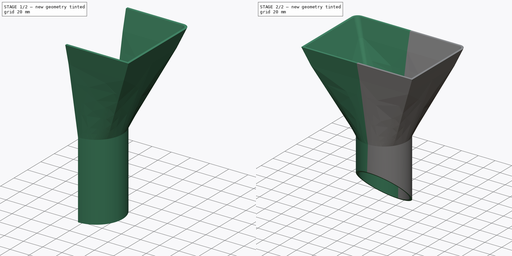
[diagram: build sequence overview — one tinted view per stage of 2, left to right]
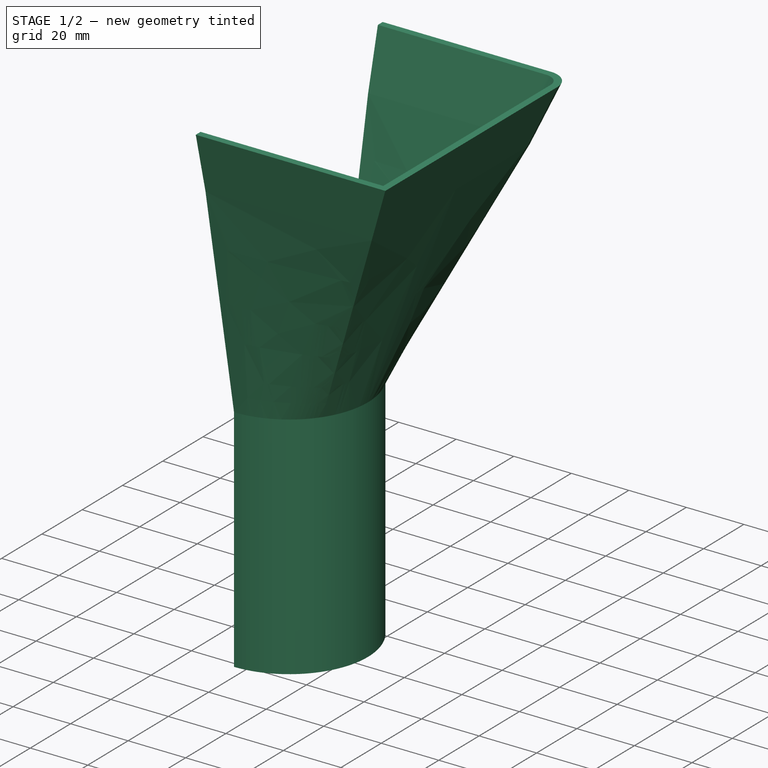
[diagram: stage 1 of 2 — iso view after this stage's code; geometry added in this stage tinted green]
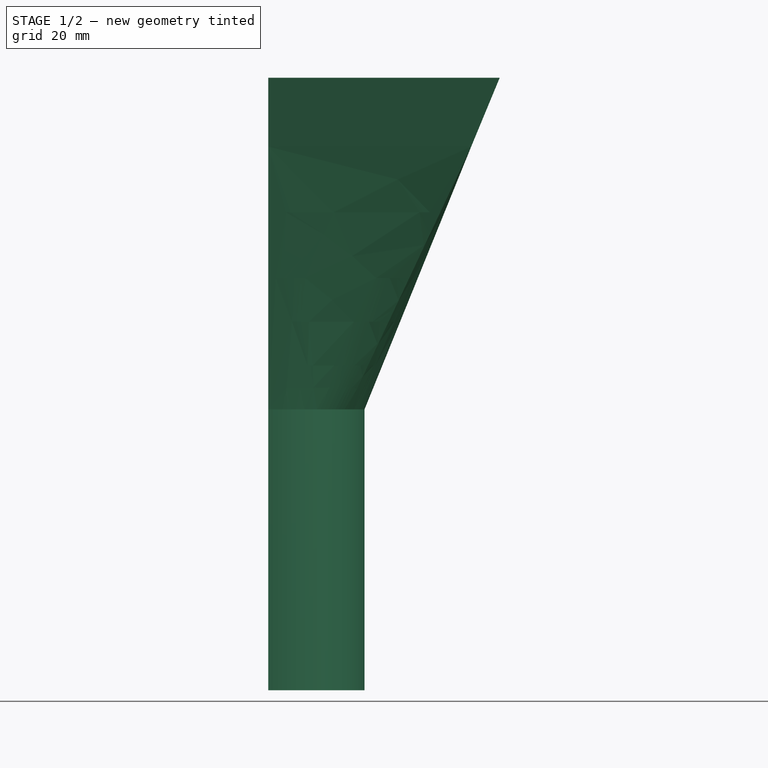
[diagram: stage 1 of 2 — front view after this stage's code; geometry added in this stage tinted green]
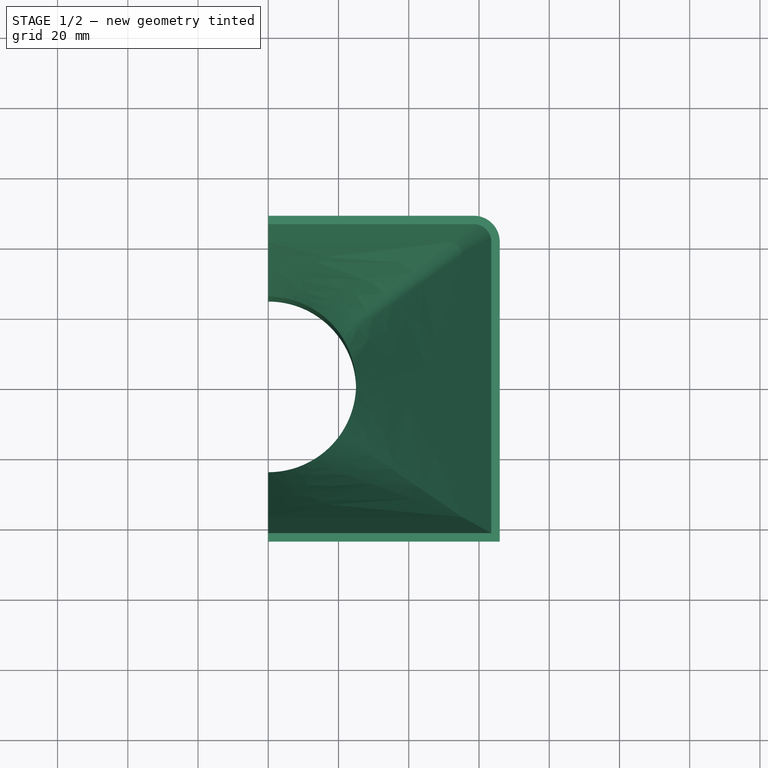
[diagram: stage 1 of 2 — top view after this stage's code; geometry added in this stage tinted green]
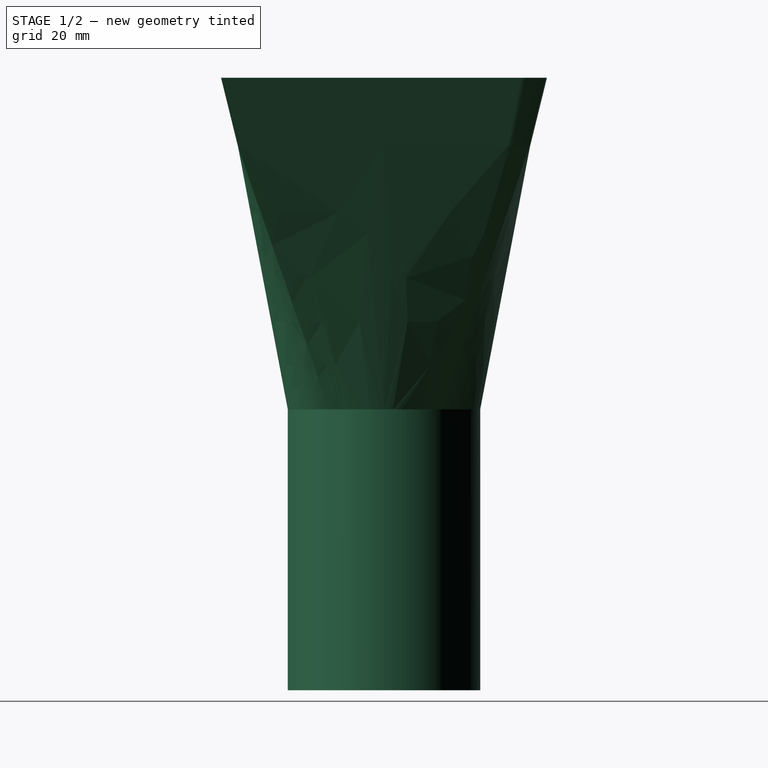
[diagram: stage 1 of 2 — right view after this stage's code; geometry added in this stage tinted green]
FCSTD DOCUMENT  (FreeCAD 0.19R24291 (Git))
Label: Насадка
License: All rights reserved
LicenseURL: http://en.wikipedia.org/wiki/All_rights_reserved
objects: Sketcher::SketchObject×11, PartDesign::Plane×5, PartDesign::Point×4, PartDesign::AdditiveLoft×1, PartDesign::Line×1, PartDesign::Pad×1, PartDesign::Pocket×1, PartDesign::Mirrored×1, PartDesign::Body×1
note: 29 computed .brp shape members not serialized (recipe doc carries the construction recipe); baked Part::Feature solids carry a one-line shape summary decoded from their .brp

FEATURE [Sketcher::SketchObject] Sketch
  FullyConstrained = true
  MapMode = 5
  Support = -> [XY_Plane]
  sketch-geometry (15):
    g0: LineSegment StartX=0 StartY=44 StartZ=0 EndX=58.5 EndY=44 EndZ=0
    g1: LineSegment StartX=63.5 StartY=39 StartZ=0 EndX=63.5 EndY=0 EndZ=0
    g2: LineSegment StartX=0 StartY=44 StartZ=0 EndX=0 EndY=46.4 EndZ=0
    g3: LineSegment StartX=0 StartY=46.4 StartZ=0 EndX=58.5 EndY=46.4 EndZ=0
    g4: LineSegment StartX=65.9 StartY=39 StartZ=0 EndX=65.9 EndY=0 EndZ=0
    g5: LineSegment StartX=65.9 StartY=0 StartZ=0 EndX=63.5 EndY=0 EndZ=0
    g6: ArcOfCircle CenterX=58.5 CenterY=39 CenterZ=0 NormalX=0 NormalY=0 NormalZ=1 AngleXU=0 Radius=5 StartAngle=0 EndAngle=1.5708
    g7: ArcOfCircle CenterX=58.5 CenterY=39 CenterZ=0 NormalX=0 NormalY=0 NormalZ=1 AngleXU=0 Radius=7.4 StartAngle=1e-16 EndAngle=1.5708
    g8: LineSegment StartX=63.5 StartY=0 StartZ=0 EndX=63.5 EndY=-44 EndZ=0
    g9: LineSegment StartX=65.9 StartY=-46.4 StartZ=0 EndX=65.9 EndY=0 EndZ=0
    g10: LineSegment StartX=65.9 StartY=-46.4 StartZ=0 EndX=0 EndY=-46.4 EndZ=0
    g11: LineSegment StartX=0 StartY=-46.4 StartZ=0 EndX=0 EndY=-44 EndZ=0
    g12: LineSegment StartX=0 StartY=-44 StartZ=0 EndX=63.5 EndY=-44 EndZ=0
    g13: LineSegment StartX=0 StartY=0 StartZ=0 EndX=0 EndY=44 EndZ=0
    g14: LineSegment StartX=0 StartY=0 StartZ=0 EndX=0 EndY=-44 EndZ=0
  constraints (40):
    c: PointOnObject(g0,g-2)
    c: Horizontal(g0)
    c: PointOnObject(g1,g-1)
    c: Vertical(g1)
    c: Coincident(g0,g2)
    c: PointOnObject(g2,g-2)
    c: Coincident(g2,g3)
    c: Horizontal(g3)
    c: PointOnObject(g4,g-1)
    c: Vertical(g4)
    c: Coincident(g4,g5)
    c: Coincident(g5,g1)
    c: Equal(g5,g2)
    c: Distance(g5) = 2.4
    c: Tangent(g0,g6) = 1.5708
    c: Tangent(g1,g6) = 1.5708
    c: Tangent(g3,g7) = 1.5708
    c: Tangent(g4,g7) = 1.5708
    c: Distance(g1,g-1) = 63.5
    c: Distance(g0,g-1) = 44
    c: Diameter(g6) = 10
    c: Vertical(g3,g0)
    c: Vertical(g8)
    c: Vertical(g9)
    c: Coincident(g10,g11)
    c: Coincident(g11,g12)
    c: Horizontal(g10)
    c: Horizontal(g12)
    c: Vertical(g11)
    c: Coincident(g10,g9)
    c: PointOnObject(g11,g-2)
    c: Coincident(g12,g8)
    c: Coincident(g8,g1)
    c: Equal(g5,g11)
    c: Coincident(g13,g0)
    c: Coincident(g14,g13)
    c: Coincident(g14,g11)
    c: Equal(g14,g13)
    c: Coincident(g9,g4)
    c: Coincident(g13,g-1)
FEATURE [Sketcher::SketchObject] Sketch001
  AttachmentOffset = pos=(0,0,-94.4267) rot=(0,0,1;0rad)
  FullyConstrained = true
  MapMode = 5
  Placement = pos=(0,0,-94.4267) rot=(0,0,1;0rad)
  Support = -> [XY_Plane]
  expr: .AttachmentOffset.Base.z = -20 - 16.5 / tan(25 / 2)
  sketch-geometry (15):
    g0: ArcOfCircle CenterX=0 CenterY=0 CenterZ=0 NormalX=0 NormalY=0 NormalZ=1 AngleXU=0 Radius=25 StartAngle=0.640784 EndAngle=1.5708
    g1: ArcOfCircle CenterX=0 CenterY=0 CenterZ=0 NormalX=0 NormalY=0 NormalZ=1 AngleXU=0 Radius=25 StartAngle=0 EndAngle=0.56213
    g2: ArcOfCircle CenterX=0 CenterY=0 CenterZ=0 NormalX=0 NormalY=0 NormalZ=1 AngleXU=0 Radius=27.4 StartAngle=0 EndAngle=0.56213
    g3: ArcOfCircle CenterX=0 CenterY=0 CenterZ=0 NormalX=0 NormalY=0 NormalZ=1 AngleXU=0 Radius=27.4 StartAngle=0.640784 EndAngle=1.5708
    g4: LineSegment StartX=0 StartY=0 StartZ=0 EndX=63.5 EndY=40 EndZ=0
    g5: LineSegment StartX=1.5e-15 StartY=25 StartZ=0 EndX=1.7e-15 EndY=27.4 EndZ=0
    g6: ArcOfCircle CenterX=0 CenterY=0 CenterZ=0 NormalX=0 NormalY=0 NormalZ=1 AngleXU=0 Radius=27.4 StartAngle=0.56213 EndAngle=0.640784
    g7: ArcOfCircle CenterX=0 CenterY=0 CenterZ=0 NormalX=0 NormalY=0 NormalZ=1 AngleXU=0 Radius=25 StartAngle=0.56213 EndAngle=0.640784
    g8: LineSegment StartX=0 StartY=0 StartZ=0 EndX=59 EndY=44 EndZ=0
    g9: ArcOfCircle CenterX=0 CenterY=0 CenterZ=0 NormalX=0 NormalY=0 NormalZ=1 AngleXU=0 Radius=25 StartAngle=5.67723 EndAngle=6.28319
    g10: ArcOfCircle CenterX=0 CenterY=0 CenterZ=0 NormalX=0 NormalY=0 NormalZ=1 AngleXU=0 Radius=27.4 StartAngle=5.67723 EndAngle=6.28319
    g11: ArcOfCircle CenterX=0 CenterY=0 CenterZ=0 NormalX=0 NormalY=0 NormalZ=1 AngleXU=0 Radius=25 StartAngle=4.71239 EndAngle=5.67723
    g12: ArcOfCircle CenterX=0 CenterY=0 CenterZ=0 NormalX=0 NormalY=0 NormalZ=1 AngleXU=0 Radius=27.4 StartAngle=4.71239 EndAngle=5.67723
    g13: LineSegment StartX=0 StartY=0 StartZ=0 EndX=63.5 EndY=-44 EndZ=0
    g14: LineSegment StartX=-5e-15 StartY=-27.4 StartZ=0 EndX=0 EndY=-25 EndZ=0
  constraints (45):
    c: PointOnObject(g0,g-2)
    c: Coincident(g1,g0)
    c: PointOnObject(g1,g-1)
    c: Coincident(g2,g0)
    c: PointOnObject(g2,g-1)
    c: Coincident(g3,g0)
    c: PointOnObject(g3,g-2)
    c: Coincident(g4,g0)
    c: DistanceX(g4) = 63.5
    c: DistanceY(g4) = 40
    c: PointOnObject(g2,g4)
    c: Diameter(g0) = 50
    c: Coincident(g5,g0)
    c: Coincident(g5,g3)
    c: Diameter(g3) = 54.8
    c: Coincident(g6,g0)
    c: Coincident(g6,g3)
    c: Coincident(g6,g2)
    c: Coincident(g7,g0)
    c: Coincident(g7,g1)
    c: Coincident(g7,g0)
    c: Coincident(g0,g-1)
    c: PointOnObject(g1,g4)
    c: Coincident(g8,g0)
    c: DistanceX(g8) = 59
    c: DistanceY(g8) = 44
    c: PointOnObject(g3,g8)
    c: PointOnObject(g0,g8)
    c: Coincident(g9,g0)
    c: Coincident(g9,g1)
    c: Coincident(g10,g0)
    c: Coincident(g10,g2)
    c: Coincident(g11,g0)
    c: Coincident(g11,g9)
    c: PointOnObject(g11,g-2)
    c: Coincident(g12,g0)
    c: Coincident(g12,g10)
    c: PointOnObject(g12,g-2)
    c: Coincident(g13,g0)
    c: DistanceX(g13) = 63.5
    c: DistanceY(g13) = -44
    c: PointOnObject(g9,g13)
    c: PointOnObject(g10,g13)
    c: Coincident(g14,g12)
    c: Coincident(g14,g11)
FEATURE [Sketcher::SketchObject] Sketch002
  FullyConstrained = true
  MapMode = 5
  Support = -> [XY_Plane]
  sketch-geometry (6):
    g0: LineSegment StartX=61.9 StartY=0 StartZ=0 EndX=63.5 EndY=0 EndZ=0
    g1: LineSegment StartX=63.5 StartY=0 StartZ=0 EndX=63.5 EndY=-41.5 EndZ=0
    g2: LineSegment StartX=61.9 StartY=-39.9 StartZ=0 EndX=61.9 EndY=0 EndZ=0
    g3: LineSegment StartX=63.5 StartY=-41.5 StartZ=0 EndX=0 EndY=-41.5 EndZ=0
    g4: LineSegment StartX=0 StartY=-41.5 StartZ=0 EndX=0 EndY=-39.9 EndZ=0
    g5: LineSegment StartX=0 StartY=-39.9 StartZ=0 EndX=61.9 EndY=-39.9 EndZ=0
  constraints (18):
    c: Coincident(g0,g1)
    c: Coincident(g2,g0)
    c: Horizontal(g0)
    c: Vertical(g1)
    c: Vertical(g2)
    c: PointOnObject(g0,g-1)
    c: Coincident(g3,g4)
    c: Coincident(g4,g5)
    c: Horizontal(g3)
    c: Horizontal(g5)
    c: Vertical(g4)
    c: Coincident(g3,g1)
    c: PointOnObject(g4,g-2)
    c: Coincident(g5,g2)
    c: Distance(g0) = 1.6
    c: DistanceX(g1) = 63.5
    c: DistanceY(g1) = -41.5
    c: Equal(g0,g4)
FEATURE [Sketcher::SketchObject] Sketch004
  FullyConstrained = false
  MapMode = 5
  Placement = pos=(0,0,0) rot=(0.57735,0.57735,0.57735;2.0944rad)
  Support = -> [YZ_Plane]
  sketch-geometry (7):
    g0: LineSegment StartX=0 StartY=0 StartZ=0 EndX=46.4 EndY=0 EndZ=0
    g1: LineSegment StartX=0 StartY=0 StartZ=0 EndX=-46.4 EndY=0 EndZ=0
    g2: LineSegment StartX=-46.4 StartY=0 StartZ=0 EndX=-5.11744 EndY=-209.178 EndZ=0
    g3: LineSegment StartX=46.4 StartY=0 StartZ=0 EndX=-5.11744 EndY=-209.178 EndZ=0
    g4: LineSegment StartX=-46.4 StartY=0 StartZ=0 EndX=-42.5276 EndY=-19.6215 EndZ=0
    g5: LineSegment StartX=46.4 StartY=0 StartZ=0 EndX=22.486 EndY=-97.0985 EndZ=0
    g6: LineSegment StartX=-42.5276 StartY=-19.6215 StartZ=0 EndX=22.486 EndY=-97.0985 EndZ=0
  constraints (19):
    c: Coincident(g0,g-1)
    c: PointOnObject(g0,g-1)
    c: Coincident(g1,g-1)
    c: PointOnObject(g1,g-1)
    c: Equal(g0,g1)
    c: Distance(g0) = 46.4
    c: Coincident(g2,g1)
    c: Coincident(g3,g0)
    c: Coincident(g3,g2)
    c: Angle(g3,g2) = 0.436332
    c: Coincident(g4,g1)
    c: PointOnObject(g4,g2)
    c: Coincident(g5,g0)
    c: PointOnObject(g5,g3)
    c: Coincident(g6,g4)
    c: Coincident(g6,g5)
    c: Distance(g4) = 20
    c: Distance(g5) = 100
    c: Distance(g5,g-2) = 22.486
FEATURE [PartDesign::Plane] DatumPlane001
  Length = 167.759
  MapMode = 13
  Placement = pos=(19.5,38.4287,-32.3662) rot=(0,0.787128,0.61679;3.14159rad)
  ResizeMode = 0
  Support = -> [Sketch004,Sketch]
  Width = 281.223
FEATURE [PartDesign::Plane] DatumPlane002
  Length = 153.919
  MapMode = 1
  Placement = pos=(-5.1e-15,-42.5276,-19.6215) rot=(0,0,1;0rad)
  ResizeMode = 0
  Support = -> [Sketch004]
  Width = 114.919
FEATURE [PartDesign::Point] DatumPoint001
  AttacherType = Attacher::AttachEnginePoint
  MapMode = 40
  Placement = pos=(1.36e-14,41.5675,-19.6215) rot=(0,0,1;0rad)
  Support = -> [Sketch004,DatumPlane002]
FEATURE [PartDesign::Plane] DatumPlane003
  Length = 153.919
  MapMode = 1
  Placement = pos=(2.66e-14,22.486,-97.0985) rot=(0,0,1;0rad)
  ResizeMode = 0
  Support = -> [Sketch004]
  Width = 114.919
FEATURE [Sketcher::SketchObject] Sketch003
  ExternalGeometry = -> [DatumPlane003]
  FullyConstrained = true
  MapMode = 5
  Placement = pos=(0,0,0) rot=(1,0,0;1.5708rad)
  Support = -> [XZ_Plane]
  sketch-geometry (5):
    g0: LineSegment StartX=65.9 StartY=0 StartZ=0 EndX=-1.42e-14 EndY=-159.097 EndZ=0
    g1: LineSegment StartX=-65.9 StartY=0 StartZ=0 EndX=-1.42e-14 EndY=-159.097 EndZ=0
    g2: LineSegment StartX=65.9 StartY=0 StartZ=0 EndX=0 EndY=0 EndZ=0
    g3: LineSegment StartX=0 StartY=0 StartZ=0 EndX=-65.9 EndY=0 EndZ=0
    g4: GeomPoint X=25.6805 Y=-97.0985 Z=0
  constraints (15):
    c: PointOnObject(g0,g-1)
    c: PointOnObject(g1,g-1)
    c: Coincident(g1,g0)
    c: Coincident(g2,g0)
    c: Coincident(g2,g-1)
    c: Coincident(g3,g-1)
    c: Coincident(g3,g1)
    c: Equal(g2,g3)
    c: Angle(g0,g1) = 0.785398
    c: Distance(g0) = 172.205
    c: Equal(g0,g1)
    c: Distance(g2) = 65.9
    c: PointOnObject(g4,g-3)
    c: PointOnObject(g4,g0)
    c: Distance(g4,g-2) = 25.6805
FEATURE [PartDesign::Plane] DatumPlane
  Length = 124.027
  MapMode = 13
  Placement = pos=(43.9333,13,-53.0322) rot=(0.485653,-0.485653,-0.726831;1.88458rad)
  ResizeMode = 0
  Support = -> [Sketch003,Sketch]
  Width = 293.915
FEATURE [PartDesign::Point] DatumPoint
  AttacherType = Attacher::AttachEnginePoint
  MapMode = 40
  Placement = pos=(57.7725,-4.4e-15,-19.6215) rot=(0,0,1;0rad)
  Support = -> [Sketch003,DatumPlane002]
FEATURE [Sketcher::SketchObject] Sketch006
  ExternalGeometry = -> [DatumPoint,DatumPoint001]
  FullyConstrained = true
  MapMode = 5
  Placement = pos=(-5.1e-15,-42.5276,-19.6215) rot=(0,0,1;0rad)
  Support = -> [DatumPlane002]
  sketch-geometry (15):
    g0: LineSegment StartX=57.7725 StartY=42.5276 StartZ=0 EndX=55.3725 EndY=42.5276 EndZ=0
    g1: LineSegment StartX=55.3725 StartY=42.5276 StartZ=0 EndX=55.3725 EndY=77.6951 EndZ=0
    g2: LineSegment StartX=57.7725 StartY=77.6951 StartZ=0 EndX=57.7725 EndY=42.5276 EndZ=0
    g3: LineSegment StartX=51.3725 StartY=81.6951 StartZ=0 EndX=2.13e-14 EndY=81.6951 EndZ=0
    g4: LineSegment StartX=1.87e-14 StartY=81.6951 StartZ=0 EndX=1.87e-14 EndY=84.0951 EndZ=0
    g5: LineSegment StartX=1.87e-14 StartY=84.0951 StartZ=0 EndX=51.3725 EndY=84.0951 EndZ=0
    g6: ArcOfCircle CenterX=51.3725 CenterY=77.6951 CenterZ=0 NormalX=0 NormalY=0 NormalZ=1 AngleXU=0 Radius=4 StartAngle=6e-16 EndAngle=1.5708
    g7: ArcOfCircle CenterX=51.3725 CenterY=77.6951 CenterZ=0 NormalX=0 NormalY=0 NormalZ=1 AngleXU=0 Radius=6.4 StartAngle=2e-16 EndAngle=1.5708
    g8: LineSegment StartX=55.3725 StartY=42.5276 StartZ=0 EndX=55.3725 EndY=3.36006 EndZ=0
    g9: LineSegment StartX=57.7725 StartY=42.5276 StartZ=0 EndX=57.7725 EndY=0.960065 EndZ=0
    g10: LineSegment StartX=55.3725 StartY=3.36006 StartZ=0 EndX=0 EndY=3.36006 EndZ=0
    g11: LineSegment StartX=0 StartY=0.960065 StartZ=0 EndX=57.7725 EndY=0.960065 EndZ=0
    g12: LineSegment StartX=0 StartY=0.960065 StartZ=0 EndX=0 EndY=3.36006 EndZ=0
    g13: LineSegment StartX=1.87e-14 StartY=81.6951 StartZ=0 EndX=0 EndY=42.5276 EndZ=0
    g14: LineSegment StartX=0 StartY=42.5276 StartZ=0 EndX=0 EndY=3.36006 EndZ=0
  constraints (39):
    c: Coincident(g0,g1)
    c: Coincident(g2,g0)
    c: Horizontal(g0)
    c: Vertical(g1)
    c: Vertical(g2)
    c: Coincident(g0,g-3)
    c: Coincident(g3,g4)
    c: Coincident(g4,g5)
    c: Horizontal(g3)
    c: Horizontal(g5)
    c: Vertical(g4)
    c: Coincident(g4,g-4)
    c: Equal(g0,g4)
    c: Distance(g0) = 2.4
    c: Tangent(g3,g6) = -1.5708
    c: Tangent(g1,g6) = -1.5708
    c: Tangent(g5,g7) = 1.5708
    c: Tangent(g2,g7) = 1.5708
    c: Diameter(g6) = 8
    c: Vertical(g5,g3)
    c: Coincident(g8,g1)
    c: Vertical(g8)
    c: Coincident(g9,g2)
    c: Vertical(g9)
    c: Coincident(g10,g8)
    c: PointOnObject(g10,g-2)
    c: Horizontal(g10)
    c: PointOnObject(g11,g-2)
    c: Coincident(g11,g9)
    c: Horizontal(g11)
    c: Coincident(g12,g11)
    c: Coincident(g12,g10)
    c: Equal(g12,g0)
    c: Coincident(g13,g3)
    c: PointOnObject(g13,g-2)
    c: Coincident(g14,g13)
    c: Coincident(g14,g10)
    c: Horizontal(g1,g13)
    c: Equal(g14,g13)
FEATURE [Sketcher::SketchObject] Sketch007
  FullyConstrained = true
  MapMode = 5
  Placement = pos=(2.66e-14,22.486,-97.0985) rot=(0,0,1;0rad)
  Support = -> [DatumPlane003]
FEATURE [PartDesign::Point] DatumPoint002
  AttacherType = Attacher::AttachEnginePoint
  MapMode = 40
  Placement = pos=(25.6805,-2.16e-14,-97.0985) rot=(0,0,1;0rad)
  Support = -> [DatumPlane003,Sketch003]
FEATURE [Sketcher::SketchObject] Sketch008
  ExternalGeometry = -> [DatumPoint,DatumPoint001]
  FullyConstrained = true
  MapMode = 5
  Placement = pos=(-5.1e-15,-42.5276,-19.6215) rot=(0,0,1;0rad)
  Support = -> [DatumPlane002]
  expr: Constraints[15] = Sketch006.Constraints[13]
  sketch-geometry (11):
    g0: LineSegment StartX=57.7725 StartY=42.5276 StartZ=0 EndX=55.3725 EndY=42.5276 EndZ=0
    g1: LineSegment StartX=55.3725 StartY=42.5276 StartZ=0 EndX=55.3725 EndY=81.6951 EndZ=0
    g2: LineSegment StartX=57.7725 StartY=84.0951 StartZ=0 EndX=57.7725 EndY=42.5276 EndZ=0
    g3: LineSegment StartX=55.3725 StartY=81.6951 StartZ=0 EndX=2.13e-14 EndY=81.6951 EndZ=0
    g4: LineSegment StartX=1.87e-14 StartY=81.6951 StartZ=0 EndX=1.87e-14 EndY=84.0951 EndZ=0
    g5: LineSegment StartX=1.87e-14 StartY=84.0951 StartZ=0 EndX=57.7725 EndY=84.0951 EndZ=0
    g6: LineSegment StartX=57.7725 StartY=42.5276 StartZ=0 EndX=57.7725 EndY=0.960065 EndZ=0
    g7: LineSegment StartX=57.7725 StartY=0.960065 StartZ=0 EndX=0 EndY=0.960065 EndZ=0
    g8: LineSegment StartX=0 StartY=0.960065 StartZ=0 EndX=0 EndY=3.36006 EndZ=0
    g9: LineSegment StartX=0 StartY=3.36006 StartZ=0 EndX=55.3725 EndY=3.36006 EndZ=0
    g10: LineSegment StartX=55.3725 StartY=3.36006 StartZ=0 EndX=55.3725 EndY=42.5276 EndZ=0
  constraints (30):
    c: Coincident(g0,g1)
    c: Coincident(g2,g0)
    c: Horizontal(g0)
    c: Vertical(g1)
    c: Vertical(g2)
    c: Coincident(g0,g-3)
    c: Coincident(g3,g4)
    c: Coincident(g4,g5)
    c: Horizontal(g3)
    c: Horizontal(g5)
    c: Vertical(g4)
    c: Coincident(g4,g-4)
    c: Coincident(g5,g2)
    c: Coincident(g1,g3)
    c: Equal(g0,g4)
    c: Distance(g0) = 2.4
    c: Coincident(g6,g0)
    c: Vertical(g6)
    c: Coincident(g7,g6)
    c: PointOnObject(g7,g-2)
    c: Horizontal(g7)
    c: Coincident(g8,g7)
    c: PointOnObject(g8,g-2)
    c: Coincident(g9,g8)
    c: Horizontal(g9)
    c: Coincident(g10,g9)
    c: Coincident(g10,g0)
    c: Vertical(g10)
    c: Equal(g6,g2)
    c: Equal(g10,g1)
FEATURE [PartDesign::AdditiveLoft] AdditiveLoft
  Closed = false
  Profile = -> Sketch
  Ruled = true
  Sections = -> [Sketch006,Sketch001]
FEATURE [PartDesign::Line] DatumLine
  AttacherType = Attacher::AttachEngineLine
  Length = 20
  MapMode = 24
  Placement = pos=(-5e-15,-27.4,-94.4267) rot=(-0.57735,0.57735,0.57735;4.18879rad)
  ResizeMode = 0
  Support = -> [AdditiveLoft]
FEATURE [Sketcher::SketchObject] Sketch009
  ExternalGeometry = -> [Sketch004]
  FullyConstrained = true
  MapMode = 5
  Placement = pos=(0,0,0) rot=(0.57735,0.57735,0.57735;2.0944rad)
  Support = -> [YZ_Plane]
  sketch-geometry (2):
    g0: LineSegment StartX=46.4 StartY=2.6e-15 StartZ=0 EndX=0 EndY=-204.738 EndZ=0
    g1: GeomPoint X=25 Y=-94.4267 Z=0
  constraints (5):
    c: Coincident(g0,g-3)
    c: PointOnObject(g0,g-2)
    c: PointOnObject(g1,g0)
    c: DistanceX(g1) = 25
    c: DistanceY(g1) = -94.4267
FEATURE [PartDesign::Plane] DatumPlane004
  AttachmentOffset = pos=(0,0,-30) rot=(0,0,1;0rad)
  Length = 153.919
  MapMode = 2
  Placement = pos=(0,0,-124.427) rot=(0,0,1;0rad)
  ResizeMode = 0
  Support = -> [Sketch001]
  Width = 114.919
FEATURE [PartDesign::Point] DatumPoint003
  AttacherType = Attacher::AttachEnginePoint
  MapMode = 40
  Placement = pos=(3.17e-14,18.2011,-124.427) rot=(0,0,1;0rad)
  Support = -> [DatumPlane004,Sketch009]
FEATURE [Sketcher::SketchObject] Sketch010
  ExternalGeometry = -> [DatumPoint003]
  FullyConstrained = false
  MapMode = 5
  Placement = pos=(0,0,-124.427) rot=(0,0,1;0rad)
  Support = -> [DatumPlane004]
  sketch-geometry (32):
    g0: LineSegment StartX=1e-15 StartY=15.8011 StartZ=0 EndX=3.34e-14 EndY=18.2011 EndZ=0
    g1: ArcOfCircle CenterX=0 CenterY=0 CenterZ=0 NormalX=0 NormalY=0 NormalZ=1 AngleXU=0 Radius=15.8011 StartAngle=0.639664 EndAngle=1.5708
    g2: ArcOfCircle CenterX=0 CenterY=0 CenterZ=0 NormalX=0 NormalY=0 NormalZ=1 AngleXU=0 Radius=15.8011 StartAngle=0.561931 EndAngle=0.639664
    g3: ArcOfCircle CenterX=0 CenterY=0 CenterZ=0 NormalX=0 NormalY=0 NormalZ=1 AngleXU=0 Radius=15.8011 StartAngle=0 EndAngle=0.561931
    g4: ArcOfCircle CenterX=0 CenterY=0 CenterZ=0 NormalX=0 NormalY=0 NormalZ=1 AngleXU=0 Radius=18.2011 StartAngle=0.639664 EndAngle=1.5708
    g5: ArcOfCircle CenterX=0 CenterY=0 CenterZ=0 NormalX=0 NormalY=0 NormalZ=1 AngleXU=0 Radius=18.2011 StartAngle=0 EndAngle=0.561931
    g6: ArcOfCircle CenterX=0 CenterY=0 CenterZ=0 NormalX=0 NormalY=0 NormalZ=1 AngleXU=0 Radius=18.2011 StartAngle=0.561931 EndAngle=0.639664
    g7: LineSegment StartX=0 StartY=0 StartZ=0 EndX=19.1177 EndY=12.0373 EndZ=0
    g8: LineSegment StartX=0 StartY=0 StartZ=0 EndX=18.1136 EndY=13.4769 EndZ=0
    g9: LineSegment StartX=0 StartY=0 StartZ=0 EndX=18.56 EndY=-12.9077 EndZ=0
    g10: LineSegment StartX=0 StartY=-25 StartZ=0 EndX=0 EndY=-22.6 EndZ=0
    g11: ArcOfEllipse CenterX=0 CenterY=0 CenterZ=0 NormalX=0 NormalY=0 NormalZ=1 MajorRadius=25 MinorRadius=18.2011 AngleXU=-1.5708 StartAngle=1.1021 EndAngle=1.5708
    g12: LineSegment StartX=0 StartY=-25 StartZ=0 EndX=0 EndY=25 EndZ=0
    g13: LineSegment StartX=18.2011 StartY=0 StartZ=0 EndX=-18.2011 EndY=0 EndZ=0
    g14: GeomPoint X=0 Y=-17.1383 Z=0
    g15: GeomPoint X=0 Y=17.1383 Z=0
    g16: ArcOfEllipse CenterX=0 CenterY=0 CenterZ=0 NormalX=0 NormalY=0 NormalZ=1 MajorRadius=25 MinorRadius=18.2011 AngleXU=-1.5708 StartAngle=0.470323 EndAngle=1.1021
    g17: LineSegment StartX=0 StartY=-25 StartZ=0 EndX=0 EndY=25 EndZ=0
    g18: LineSegment StartX=18.2011 StartY=0 StartZ=0 EndX=-18.2011 EndY=0 EndZ=0
    g19: GeomPoint X=0 Y=-17.1383 Z=0
    g20: GeomPoint X=0 Y=17.1383 Z=0
    g21: ArcOfEllipse CenterX=0 CenterY=0 CenterZ=0 NormalX=0 NormalY=0 NormalZ=1 MajorRadius=22.6 MinorRadius=15.8011 AngleXU=-1.5708 StartAngle=1.11822 EndAngle=1.5708
    g22: LineSegment StartX=0 StartY=-22.6 StartZ=0 EndX=0 EndY=22.6 EndZ=0
    g23: LineSegment StartX=15.8011 StartY=0 StartZ=0 EndX=-15.8011 EndY=0 EndZ=0
    g24: GeomPoint X=0 Y=-16.1582 Z=0
    g25: GeomPoint X=0 Y=16.1582 Z=0
    g26: ArcOfEllipse CenterX=0 CenterY=0 CenterZ=0 NormalX=0 NormalY=0 NormalZ=1 MajorRadius=22.6 MinorRadius=15.8011 AngleXU=-1.5708 StartAngle=0.486868 EndAngle=1.11822
    g27: LineSegment StartX=0 StartY=-22.6 StartZ=0 EndX=0 EndY=22.6 EndZ=0
    g28: LineSegment StartX=15.8011 StartY=0 StartZ=0 EndX=-15.8011 EndY=0 EndZ=0
    g29: GeomPoint X=0 Y=-16.1582 Z=0
    g30: GeomPoint X=0 Y=16.1582 Z=0
    g31: LineSegment StartX=7.39269 StartY=-19.9739 StartZ=0 EndX=8.24825 EndY=-22.2856 EndZ=0
  constraints (60):
    c: PointOnObject(g5,g-1)
    c: PointOnObject(g0,g-2)
    c: PointOnObject(g3,g-1)
    c: Distance(g0) = 2.4
    c: Coincident(g1,g0)
    c: Coincident(g2,g1)
    c: Coincident(g3,g2)
    c: Coincident(g4,g0)
    c: Coincident(g0,g-3)
    c: Coincident(g1,g-1)
    c: Coincident(g3,g1)
    c: Coincident(g2,g1)
    c: Coincident(g5,g1)
    c: Coincident(g4,g1)
    c: Coincident(g6,g1)
    c: Coincident(g6,g4)
    c: Coincident(g6,g5)
    c: Coincident(g7,g1)
    c: Coincident(g8,g1)
    c: PointOnObject(g1,g8)
    c: PointOnObject(g4,g8)
    c: PointOnObject(g2,g7)
    c: PointOnObject(g5,g7)
    c: DistanceX(g8) = 18.1136
    c: DistanceY(g8) = 13.4769
    c: DistanceX(g7) = 19.1177
    c: DistanceY(g7) = 12.0373
    c: Coincident(g9,g1)
    c: DistanceX(g9) = 18.56
    c: DistanceY(g9) = -12.9077
    c: PointOnObject(g10,g-2)
    c: PointOnObject(g10,g-2)
    c: Equal(g10,g0)
    c: Distance(g10,g1) = 25
    c: InternalAlignment(g12-g15 -> g11) x4
    c: Coincident(g11,g1)
    c: PointOnObject(g10,g11)
    c: Coincident(g11,g5)
    c: PointOnObject(g11,g9)
    c: InternalAlignment(g17-g20 -> g16) x4
    c: Coincident(g16,g1)
    c: PointOnObject(g12,g16)
    c: Coincident(g16,g11)
    c: Vertical(g12)
    c: Vertical(g17)
    c: InternalAlignment(g22-g25 -> g21) x4
    c: Coincident(g21,g1)
    c: PointOnObject(g10,g21)
    c: Coincident(g21,g3)
    c: PointOnObject(g21,g9)
    c: InternalAlignment(g27-g30 -> g26) x4
    c: Coincident(g26,g1)
    c: PointOnObject(g22,g26)
    c: Coincident(g26,g21)
    c: Vertical(g27)
    c: Vertical(g22)
    c: Coincident(g31,g26)
    c: Coincident(g31,g16)
    c: PointOnObject(g1,g31)
    c: Distance(g0,g1) = 15.8011
FEATURE [PartDesign::Pad] Pad
  BaseFeature = -> AdditiveLoft
  Direction = (1,1,1)
  Length = 80
  Length2 = 100
  Profile = -> AdditiveLoft [Face15]
  Type = 0
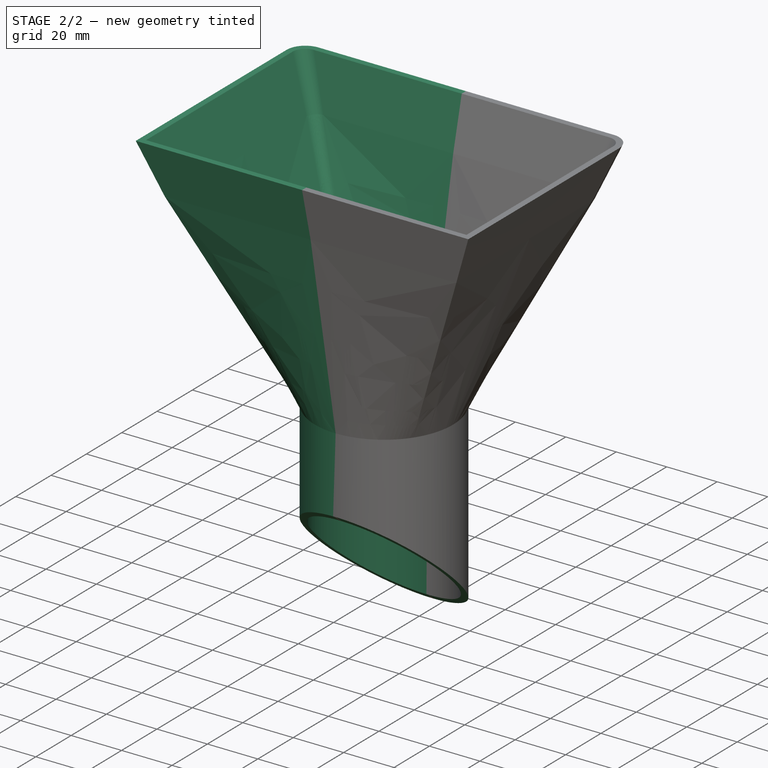
[diagram: stage 2 of 2 — iso view after this stage's code; geometry added in this stage tinted green]
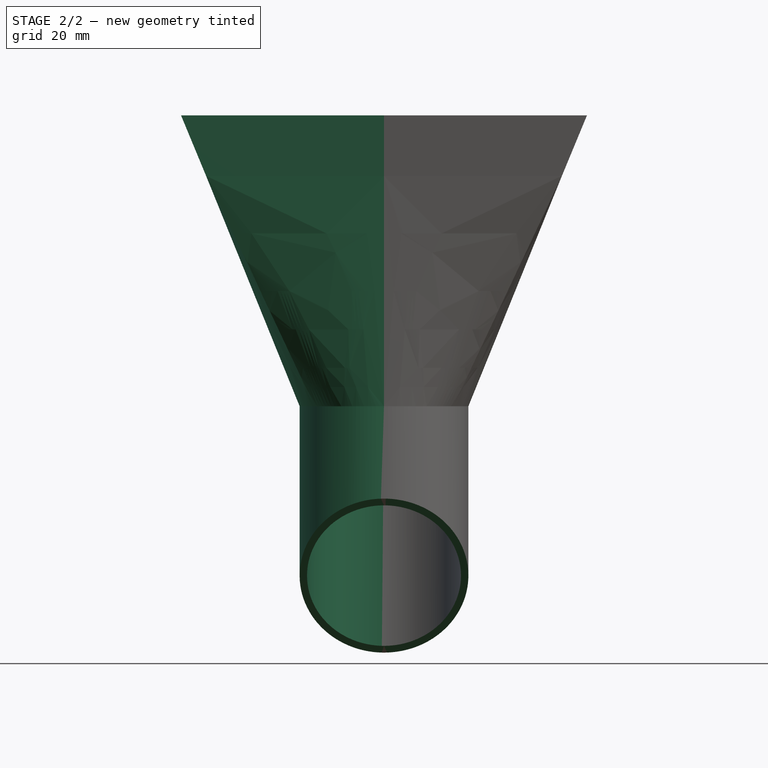
[diagram: stage 2 of 2 — front view after this stage's code; geometry added in this stage tinted green]
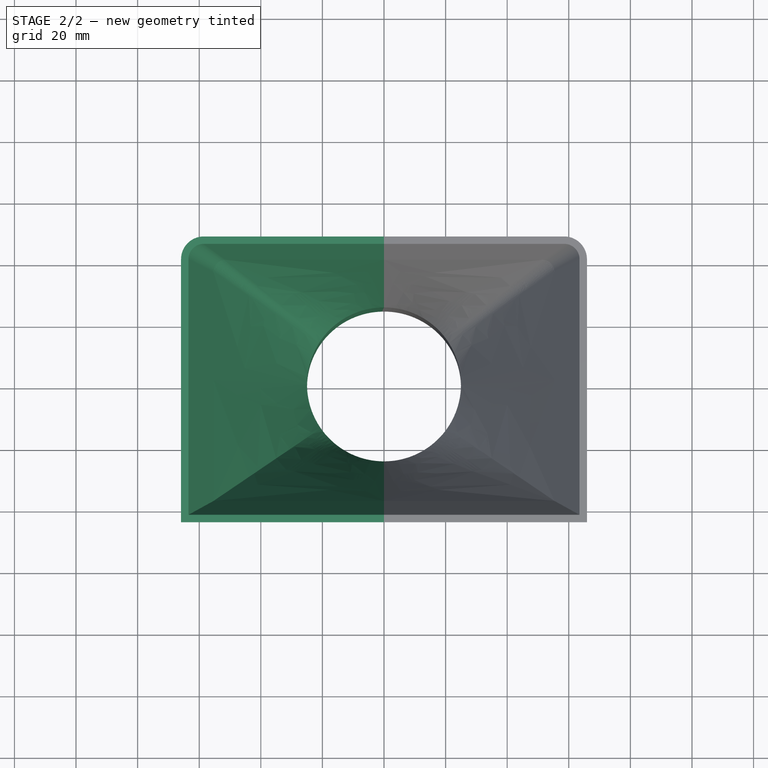
[diagram: stage 2 of 2 — top view after this stage's code; geometry added in this stage tinted green]
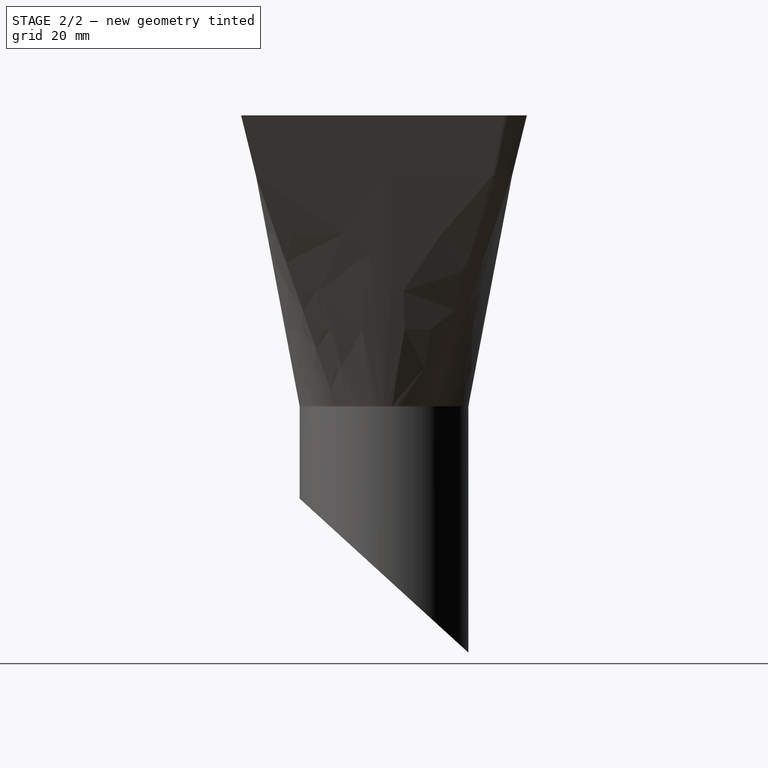
[diagram: stage 2 of 2 — right view after this stage's code; geometry added in this stage tinted green]
FEATURE [Sketcher::SketchObject] Sketch011
  ExternalGeometry = -> [Pad]
  FullyConstrained = true
  MapMode = 5
  Placement = pos=(0,0,0) rot=(0.57735,0.57735,0.57735;2.0944rad)
  Support = -> [YZ_Plane]
  sketch-geometry (3):
    g0: LineSegment StartX=-27.4 StartY=-174.427 StartZ=0 EndX=27.4 EndY=-174.427 EndZ=0
    g1: LineSegment StartX=27.4 StartY=-174.427 StartZ=0 EndX=-27.4 EndY=-124.427 EndZ=0
    g2: LineSegment StartX=-27.4 StartY=-124.427 StartZ=0 EndX=-27.4 EndY=-174.427 EndZ=0
  constraints (7):
    c: Coincident(g0,g-3)
    c: Coincident(g0,g-4)
    c: Coincident(g1,g0)
    c: Coincident(g2,g1)
    c: Coincident(g2,g0)
    c: Vertical(g2)
    c: Distance(g2) = 50
FEATURE [PartDesign::Pocket] Pocket
  BaseFeature = -> Pad
  Length = 5
  Length2 = 100
  Profile = -> Sketch011
  Reversed = true
  Type = 1
FEATURE [PartDesign::Mirrored] Mirrored
  BaseFeature = -> Pocket
  MirrorPlane = -> Sketch [V_Axis]
  Originals = -> [AdditiveLoft,Pad,Pocket]
FEATURE [PartDesign::Body] Body
  Group = -> [Sketch,Sketch001,Sketch002,Sketch003,Sketch004,DatumPlane,DatumPlane001,DatumPlane002,DatumPoint,DatumPoint001,Sketch006,DatumPlane003,Sketch007,DatumPoint002,Sketch008,AdditiveLoft,DatumLine,Sketch009,DatumPlane004,DatumPoint003,Sketch010,Pad,Sketch011,Pocket,Mirrored]
  Origin = -> Origin
  Tip = -> Mirrored
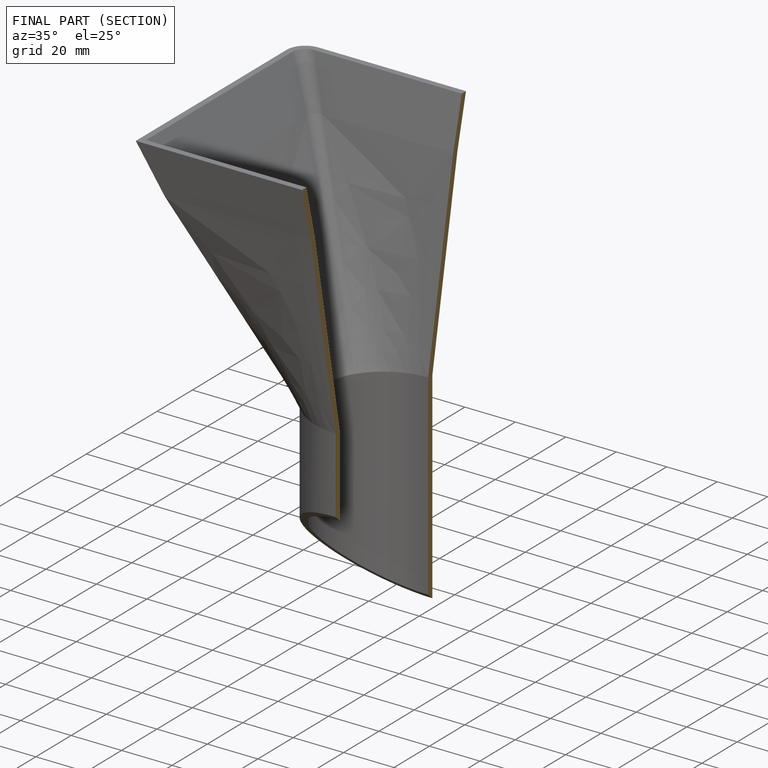
[diagram: finished part — half-section view (interior)]
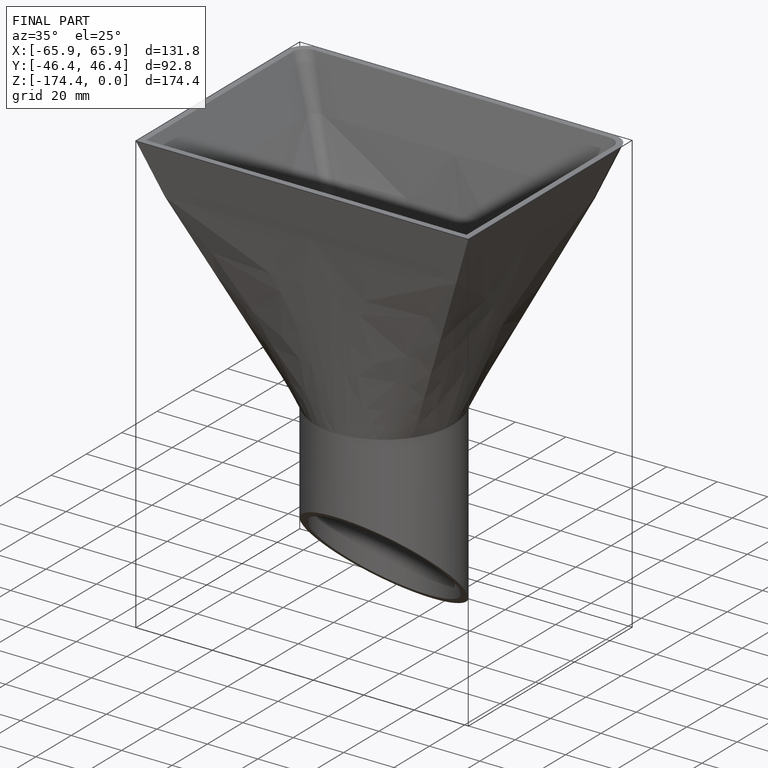
[diagram: finished part — iso view with bounding-box wireframe]
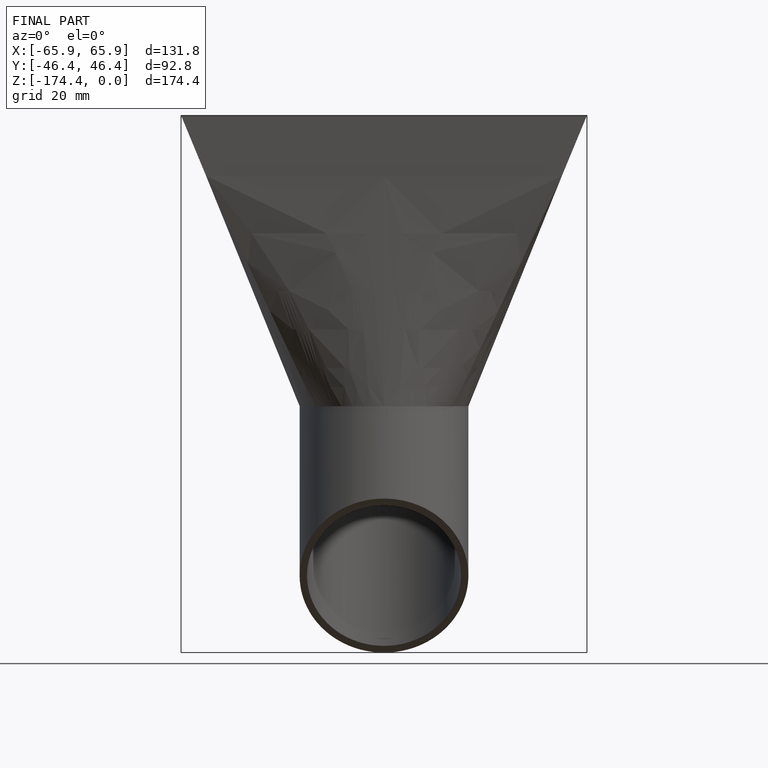
[diagram: finished part — front view with bounding-box wireframe]
